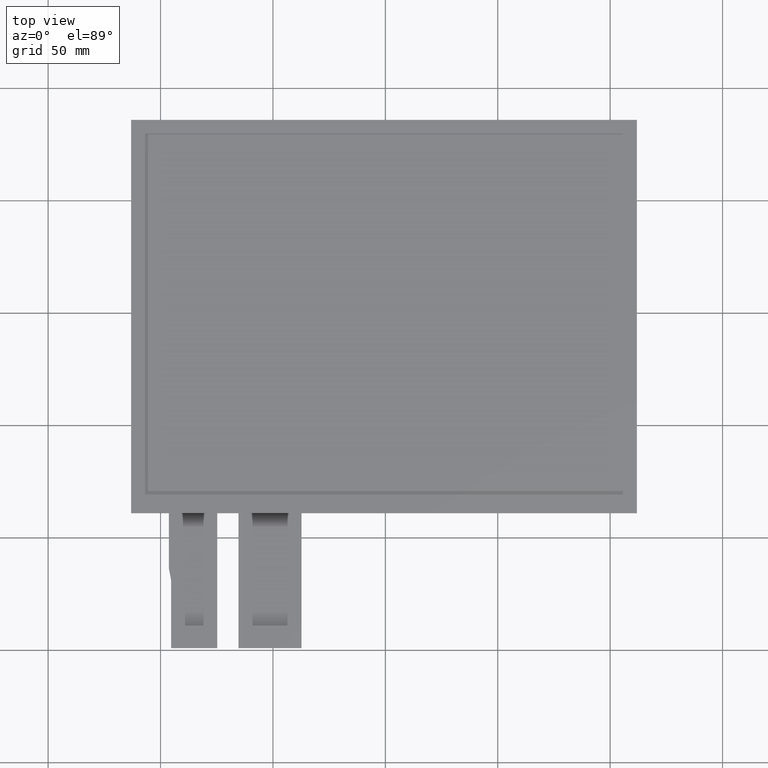
[diagram: clean part render]
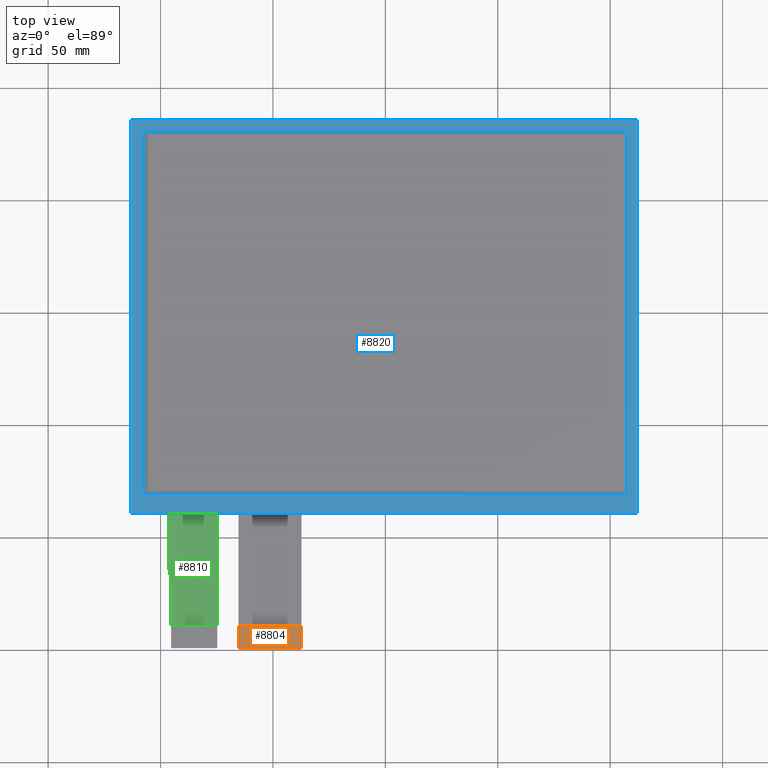
[diagram: same view with three faces highlighted in distinct colors, each labeled with its STEP entity id]
A machine part, top view with three faces highlighted in distinct colors.
Their STEP definitions:

[orange] entity #8804 — the highlighted planar face has unit normal (0, 0, 1).
#468=PLANE('',#9258);
#890=FACE_OUTER_BOUND('',#1312,.T.);
#1312=EDGE_LOOP('',(#8279,#8280,#8281,#8282,#8283,#8284));
#1358=LINE('',#11442,#2594);
#2522=LINE('',#13782,#3758);
#2528=LINE('',#13794,#3764);
#2530=LINE('',#13797,#3766);
#2594=VECTOR('',#9330,10.);
#3758=VECTOR('',#11286,10.);
#3764=VECTOR('',#11294,10.);
#3766=VECTOR('',#11298,10.);
#3816=CIRCLE('',#8858,0.2);
#3817=CIRCLE('',#8862,0.2);
#3838=VERTEX_POINT('',#11427);
#3839=VERTEX_POINT('',#11429);
#3843=VERTEX_POINT('',#11441);
#4064=VERTEX_POINT('',#11885);
#4623=VERTEX_POINT('',#13781);
#4628=VERTEX_POINT('',#13793);
#4674=EDGE_CURVE('',#3838,#3839,#3816,.T.);
#4680=EDGE_CURVE('',#3843,#3839,#1358,.T.);
#4902=EDGE_CURVE('',#3843,#4064,#3817,.T.);
#5850=EDGE_CURVE('',#4623,#4064,#2522,.T.);
#5856=EDGE_CURVE('',#4628,#4623,#2528,.T.);
#5858=EDGE_CURVE('',#3838,#4628,#2530,.T.);
#8279=ORIENTED_EDGE('',*,*,#4674,.F.);
#8280=ORIENTED_EDGE('',*,*,#5858,.T.);
#8281=ORIENTED_EDGE('',*,*,#5856,.T.);
#8282=ORIENTED_EDGE('',*,*,#5850,.T.);
#8283=ORIENTED_EDGE('',*,*,#4902,.F.);
#8284=ORIENTED_EDGE('',*,*,#4680,.T.);
#8804=ADVANCED_FACE('',(#890),#468,.T.);
#8858=AXIS2_PLACEMENT_3D('',#11430,#9319,#9320);
#8862=AXIS2_PLACEMENT_3D('',#11886,#9554,#9555);
#9258=AXIS2_PLACEMENT_3D('',#13796,#11296,#11297);
#9319=DIRECTION('center_axis',(0.,0.,-1.));
#9320=DIRECTION('ref_axis',(0.707106781186563,-0.707106781186532,0.));
#9330=DIRECTION('',(1.,0.,0.));
#9554=DIRECTION('center_axis',(0.,0.,-1.));
#9555=DIRECTION('ref_axis',(-0.707106781186548,-0.707106781186548,0.));
#11286=DIRECTION('',(0.,-1.,0.));
#11294=DIRECTION('',(-1.,0.,0.));
#11296=DIRECTION('center_axis',(0.,0.,1.));
#11297=DIRECTION('ref_axis',(1.,0.,0.));
#11298=DIRECTION('',(0.,1.,0.));
#11427=CARTESIAN_POINT('',(-37.2999999999998,-148.9,-0.8));
#11429=CARTESIAN_POINT('',(-37.4999999999999,-149.1,-0.8));
#11430=CARTESIAN_POINT('Origin',(-37.4999999999999,-148.9,-0.8));
#11441=CARTESIAN_POINT('',(-65.0999999999999,-149.1,-0.8));
#11442=CARTESIAN_POINT('',(-65.3,-149.1,-0.8));
#11885=CARTESIAN_POINT('',(-65.3,-148.9,-0.8));
#11886=CARTESIAN_POINT('Origin',(-65.0999999999999,-148.9,-0.8));
#13781=CARTESIAN_POINT('',(-65.3,-139.1,-0.8));
#13782=CARTESIAN_POINT('',(-65.3,-139.1,-0.8));
#13793=CARTESIAN_POINT('',(-37.2999999999998,-139.1,-0.8));
#13794=CARTESIAN_POINT('',(-37.2999999999998,-139.1,-0.8));
#13796=CARTESIAN_POINT('Origin',(-51.2999999999999,-144.1,-0.8));
#13797=CARTESIAN_POINT('',(-37.2999999999998,-149.1,-0.8));

[blue] entity #8820 — the highlighted planar face has unit normal (0, 0, 1).
#72=FACE_BOUND('',#1330,.T.);
#484=PLANE('',#9274);
#906=FACE_OUTER_BOUND('',#1329,.T.);
#1329=EDGE_LOOP('',(#8359,#8360,#8361,#8362));
#1330=EDGE_LOOP('',(#8363,#8364,#8365,#8366));
#2551=LINE('',#13841,#3787);
#2555=LINE('',#13849,#3791);
#2558=LINE('',#13855,#3794);
#2561=LINE('',#13860,#3797);
#2563=LINE('',#13866,#3799);
#2564=LINE('',#13868,#3800);
#2565=LINE('',#13870,#3801);
#2566=LINE('',#13871,#3802);
#3787=VECTOR('',#11341,10.);
#3791=VECTOR('',#11347,10.);
#3794=VECTOR('',#11352,10.);
#3797=VECTOR('',#11357,10.);
#3799=VECTOR('',#11363,10.);
#3800=VECTOR('',#11364,10.);
#3801=VECTOR('',#11365,10.);
#3802=VECTOR('',#11366,10.);
#4639=VERTEX_POINT('',#13839);
#4640=VERTEX_POINT('',#13840);
#4643=VERTEX_POINT('',#13848);
#4645=VERTEX_POINT('',#13854);
#4647=VERTEX_POINT('',#13864);
#4648=VERTEX_POINT('',#13865);
#4649=VERTEX_POINT('',#13867);
#4650=VERTEX_POINT('',#13869);
#5879=EDGE_CURVE('',#4639,#4640,#2551,.T.);
#5883=EDGE_CURVE('',#4643,#4639,#2555,.T.);
#5886=EDGE_CURVE('',#4645,#4643,#2558,.T.);
#5889=EDGE_CURVE('',#4640,#4645,#2561,.T.);
#5891=EDGE_CURVE('',#4647,#4648,#2563,.T.);
#5892=EDGE_CURVE('',#4648,#4649,#2564,.T.);
#5893=EDGE_CURVE('',#4649,#4650,#2565,.T.);
#5894=EDGE_CURVE('',#4650,#4647,#2566,.T.);
#8359=ORIENTED_EDGE('',*,*,#5891,.T.);
#8360=ORIENTED_EDGE('',*,*,#5892,.T.);
#8361=ORIENTED_EDGE('',*,*,#5893,.T.);
#8362=ORIENTED_EDGE('',*,*,#5894,.T.);
#8363=ORIENTED_EDGE('',*,*,#5879,.T.);
#8364=ORIENTED_EDGE('',*,*,#5889,.T.);
#8365=ORIENTED_EDGE('',*,*,#5886,.T.);
#8366=ORIENTED_EDGE('',*,*,#5883,.T.);
#8820=ADVANCED_FACE('',(#906,#72),#484,.T.);
#9274=AXIS2_PLACEMENT_3D('',#13863,#11361,#11362);
#11341=DIRECTION('',(-1.0978719650187E-16,1.,0.));
#11347=DIRECTION('',(-1.,-8.26212483441977E-17,0.));
#11352=DIRECTION('',(1.0978719650187E-16,-1.,0.));
#11357=DIRECTION('',(1.,0.,0.));
#11361=DIRECTION('center_axis',(0.,0.,1.));
#11362=DIRECTION('ref_axis',(1.,0.,0.));
#11363=DIRECTION('',(-1.,0.,0.));
#11364=DIRECTION('',(0.,-1.,0.));
#11365=DIRECTION('',(1.,3.15796771448933E-16,0.));
#11366=DIRECTION('',(0.,1.,0.));
#13839=CARTESIAN_POINT('',(-107.5,-80.91,0.));
#13840=CARTESIAN_POINT('',(-107.5,80.8900000000001,0.));
#13841=CARTESIAN_POINT('',(-107.5,-41.255,0.));
#13848=CARTESIAN_POINT('',(107.5,-80.91,0.));
#13849=CARTESIAN_POINT('',(53.45,-80.91,0.));
#13854=CARTESIAN_POINT('',(107.5,80.8900000000001,0.));
#13855=CARTESIAN_POINT('',(107.5,39.6450000000001,0.));
#13860=CARTESIAN_POINT('',(-54.05,80.8900000000001,0.));
#13863=CARTESIAN_POINT('Origin',(-0.599999999999996,-1.59999999999997,0.));
#13864=CARTESIAN_POINT('',(111.9,85.9000000000001,0.));
#13865=CARTESIAN_POINT('',(-113.1,85.9000000000001,0.));
#13866=CARTESIAN_POINT('',(111.9,85.9000000000001,0.));
#13867=CARTESIAN_POINT('',(-113.1,-89.1,0.));
#13868=CARTESIAN_POINT('',(-113.1,85.9000000000001,0.));
#13869=CARTESIAN_POINT('',(111.9,-89.0999999999999,0.));
#13870=CARTESIAN_POINT('',(-113.1,-89.1,0.));
#13871=CARTESIAN_POINT('',(111.9,-89.0999999999999,0.));

[green] entity #8810 — the highlighted planar face has unit normal (0, 0, 1).
#474=PLANE('',#9264);
#896=FACE_OUTER_BOUND('',#1318,.T.);
#1318=EDGE_LOOP('',(#8311,#8312,#8313,#8314,#8315,#8316,#8317,#8318));
#1347=LINE('',#11413,#2583);
#1351=LINE('',#11422,#2587);
#1756=LINE('',#12250,#2992);
#2518=LINE('',#13773,#3754);
#2531=LINE('',#13799,#3767);
#2538=LINE('',#13813,#3774);
#2583=VECTOR('',#9303,10.);
#2587=VECTOR('',#9313,10.);
#2992=VECTOR('',#9754,10.);
#3754=VECTOR('',#11278,10.);
#3767=VECTOR('',#11301,10.);
#3774=VECTOR('',#11318,10.);
#3812=CIRCLE('',#8849,5.);
#3814=CIRCLE('',#8854,5.);
#3825=VERTEX_POINT('',#11392);
#3826=VERTEX_POINT('',#11394);
#3833=VERTEX_POINT('',#11412);
#3834=VERTEX_POINT('',#11416);
#3835=VERTEX_POINT('',#11417);
#4239=VERTEX_POINT('',#12247);
#4240=VERTEX_POINT('',#12249);
#4620=VERTEX_POINT('',#13771);
#4657=EDGE_CURVE('',#3825,#3826,#3812,.T.);
#4666=EDGE_CURVE('',#3833,#3826,#1347,.T.);
#4668=EDGE_CURVE('',#3834,#3835,#3814,.T.);
#4671=EDGE_CURVE('',#3825,#3835,#1351,.T.);
#5084=EDGE_CURVE('',#4240,#4239,#1756,.T.);
#5846=EDGE_CURVE('',#3834,#4620,#2518,.T.);
#5859=EDGE_CURVE('',#4620,#4240,#2531,.T.);
#5866=EDGE_CURVE('',#3833,#4239,#2538,.T.);
#8311=ORIENTED_EDGE('',*,*,#4657,.F.);
#8312=ORIENTED_EDGE('',*,*,#4671,.T.);
#8313=ORIENTED_EDGE('',*,*,#4668,.F.);
#8314=ORIENTED_EDGE('',*,*,#5846,.T.);
#8315=ORIENTED_EDGE('',*,*,#5859,.T.);
#8316=ORIENTED_EDGE('',*,*,#5084,.T.);
#8317=ORIENTED_EDGE('',*,*,#5866,.F.);
#8318=ORIENTED_EDGE('',*,*,#4666,.T.);
#8810=ADVANCED_FACE('',(#896),#474,.T.);
#8849=AXIS2_PLACEMENT_3D('',#11395,#9288,#9289);
#8854=AXIS2_PLACEMENT_3D('',#11418,#9307,#9308);
#9264=AXIS2_PLACEMENT_3D('',#13812,#11316,#11317);
#9288=DIRECTION('center_axis',(0.,0.,-1.));
#9289=DIRECTION('ref_axis',(-0.995396198367179,-0.0958457525202264,0.));
#9303=DIRECTION('',(0.,-1.,0.));
#9307=DIRECTION('center_axis',(0.,0.,1.));
#9308=DIRECTION('ref_axis',(0.995396198367179,0.0958457525202264,0.));
#9313=DIRECTION('',(0.190808995376548,-0.981627183447663,0.));
#9754=DIRECTION('',(-4.44089209850063E-16,1.,0.));
#11278=DIRECTION('',(0.,-1.,0.));
#11301=DIRECTION('',(1.,0.,0.));
#11316=DIRECTION('center_axis',(0.,0.,1.));
#11317=DIRECTION('ref_axis',(1.,0.,0.));
#11318=DIRECTION('',(1.,3.15796771448933E-16,0.));
#11392=CARTESIAN_POINT('',(-96.2081359172383,-114.158045719925,-1.1));
#11394=CARTESIAN_POINT('',(-96.2999999999999,-113.204000743042,-1.1));
#11395=CARTESIAN_POINT('Origin',(-91.2999999999999,-113.204000743042,-1.1));
#11412=CARTESIAN_POINT('',(-96.2999999999999,-89.1,-1.1));
#11413=CARTESIAN_POINT('',(-96.2999999999999,-89.1,-1.1));
#11416=CARTESIAN_POINT('',(-95.2999999999999,-119.311445240988,-1.1));
#11417=CARTESIAN_POINT('',(-95.3918640827616,-118.357400264105,-1.1));
#11418=CARTESIAN_POINT('Origin',(-100.3,-119.311445240988,-1.1));
#11422=CARTESIAN_POINT('',(-96.2999999999999,-113.68544598403,-1.1));
#12247=CARTESIAN_POINT('',(-74.8,-89.0999999999999,-1.1));
#12249=CARTESIAN_POINT('',(-74.7999999999999,-139.1,-1.1));
#12250=CARTESIAN_POINT('',(-74.7999999999999,-149.1,-1.1));
#13771=CARTESIAN_POINT('',(-95.2999999999999,-139.1,-1.1));
#13773=CARTESIAN_POINT('',(-95.2999999999999,-118.83,-1.1));
#13799=CARTESIAN_POINT('',(-80.1749999999999,-139.1,-1.1));
#13812=CARTESIAN_POINT('Origin',(-85.5499999999999,-119.1,-1.1));
#13813=CARTESIAN_POINT('',(13.175,-89.1,-1.1));